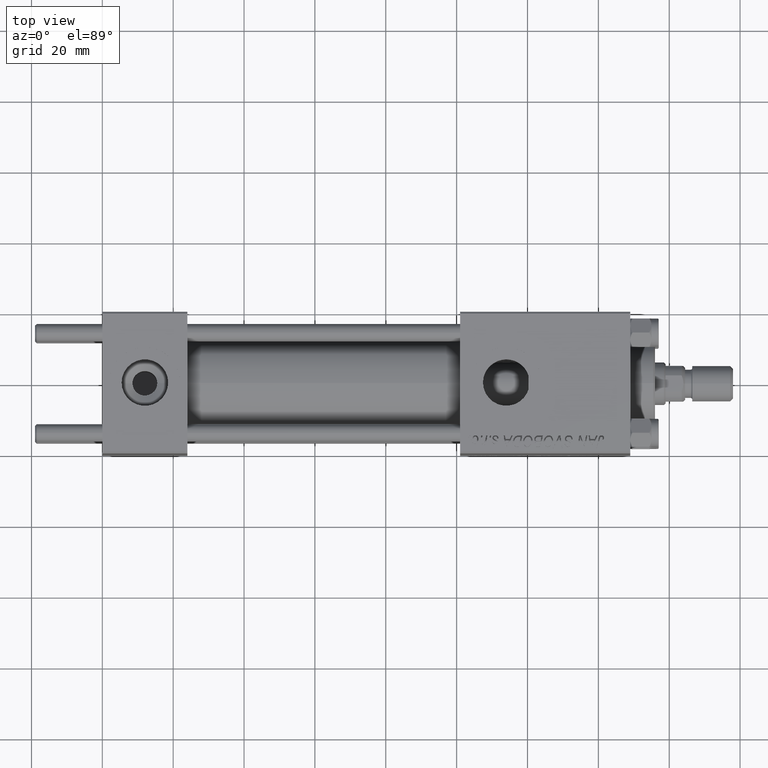
[diagram: clean part render]
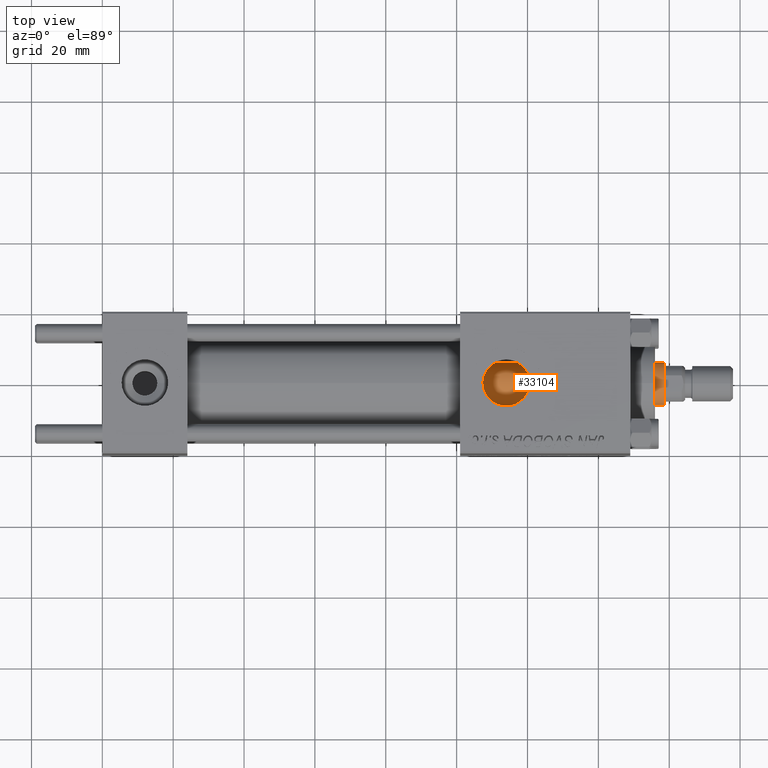
[diagram: same view with one face highlighted and labeled with its STEP entity id]
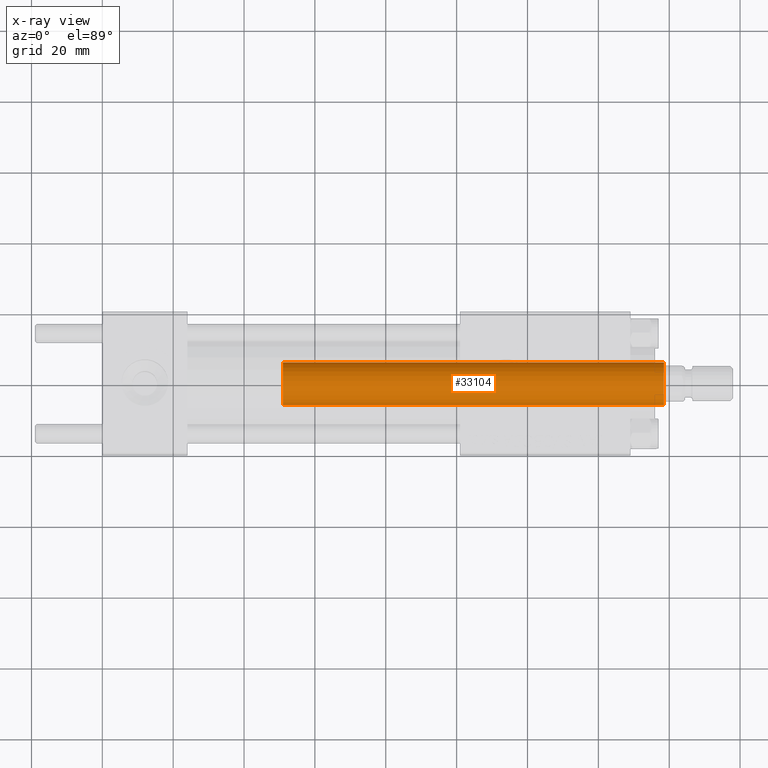
[diagram: x-ray of the same camera — body ghosted, the highlighted face saturated]
A machine part, top view. The second image highlights one B-rep face of the part: STEP entity #33104.
The next image is the same camera in x-ray: the body ghosted, the highlighted face saturated — about 0% of this face is hidden behind the body in this view.
In plain terms, the highlighted cylindrical surface (edge-blend (fillet) strip) has radius 6 mm, axis along (-1, 0, 0).
Its self-contained STEP definition (entity closure, byte-faithful):
#3341 = EDGE_LOOP ( 'NONE', ( #28612, #12638, #20430, #22472 ) ) ;
#3820 = CARTESIAN_POINT ( 'NONE',  ( 6.000000000000000888, 7.347880794884120722E-16, 27.00000000000000000 ) ) ;
#6204 = VECTOR ( 'NONE', #8460, 1000.000000000000000 ) ;
#8460 = DIRECTION ( 'NONE',  ( -0.000000000000000000, -0.000000000000000000, -1.000000000000000000 ) ) ;
#9311 = VERTEX_POINT ( 'NONE', #3820 ) ;
#11397 = CARTESIAN_POINT ( 'NONE',  ( 6.000000000000000888, 7.347880794884120722E-16, 135.0000000000000000 ) ) ;
#12638 = ORIENTED_EDGE ( 'NONE', *, *, #47725, .T. ) ;
#16141 = CARTESIAN_POINT ( 'NONE',  ( 0.000000000000000000, 0.000000000000000000, 27.00000000000000000 ) ) ;
#16394 = LINE ( 'NONE', #11397, #6204 ) ;
#17490 = EDGE_CURVE ( 'NONE', #51543, #44346, #35953, .T. ) ;
#18433 = EDGE_CURVE ( 'NONE', #48184, #9311, #16394, .T. ) ;
#20430 = ORIENTED_EDGE ( 'NONE', *, *, #17490, .T. ) ;
#22472 = ORIENTED_EDGE ( 'NONE', *, *, #26129, .T. ) ;
#24237 = CARTESIAN_POINT ( 'NONE',  ( 0.000000000000000000, 0.000000000000000000, 135.0000000000000000 ) ) ;
#24320 = DIRECTION ( 'NONE',  ( 0.000000000000000000, 0.000000000000000000, 1.000000000000000000 ) ) ;
#24842 = CIRCLE ( 'NONE', #37541, 6.000000000000000888 ) ;
#25761 = AXIS2_PLACEMENT_3D ( 'NONE', #16141, #24320, #40466 ) ;
#26020 = DIRECTION ( 'NONE',  ( 0.000000000000000000, 0.000000000000000000, -1.000000000000000000 ) ) ;
#26129 = EDGE_CURVE ( 'NONE', #44346, #9311, #32517, .T. ) ;
#27930 = DIRECTION ( 'NONE',  ( -1.000000000000000000, 0.000000000000000000, 0.000000000000000000 ) ) ;
#28612 = ORIENTED_EDGE ( 'NONE', *, *, #18433, .F. ) ;
#29464 = CARTESIAN_POINT ( 'NONE',  ( 0.000000000000000000, 0.000000000000000000, 134.4999999999999716 ) ) ;
#31280 = CARTESIAN_POINT ( 'NONE',  ( -6.000000000000000888, 0.000000000000000000, 134.4999999999999716 ) ) ;
#32171 = CYLINDRICAL_SURFACE ( 'NONE', #50692, 6.000000000000000888 ) ;
#32517 = CIRCLE ( 'NONE', #25761, 6.000000000000000888 ) ;
#33104 = ADVANCED_FACE ( 'NONE', ( #52274 ), #32171, .T. ) ;
#35933 = CARTESIAN_POINT ( 'NONE',  ( -6.000000000000000888, 0.000000000000000000, 27.00000000000000000 ) ) ;
#35953 = LINE ( 'NONE', #40445, #38243 ) ;
#36139 = DIRECTION ( 'NONE',  ( -0.000000000000000000, -0.000000000000000000, -1.000000000000000000 ) ) ;
#37541 = AXIS2_PLACEMENT_3D ( 'NONE', #29464, #26020, #38207 ) ;
#38207 = DIRECTION ( 'NONE',  ( 1.000000000000000000, 0.000000000000000000, 0.000000000000000000 ) ) ;
#38243 = VECTOR ( 'NONE', #51577, 1000.000000000000000 ) ;
#40445 = CARTESIAN_POINT ( 'NONE',  ( -6.000000000000000888, 0.000000000000000000, 135.0000000000000000 ) ) ;
#40466 = DIRECTION ( 'NONE',  ( 1.000000000000000000, 0.000000000000000000, 0.000000000000000000 ) ) ;
#40676 = CARTESIAN_POINT ( 'NONE',  ( 6.000000000000000888, 7.347880794884120722E-16, 134.4999999999999716 ) ) ;
#44346 = VERTEX_POINT ( 'NONE', #35933 ) ;
#47725 = EDGE_CURVE ( 'NONE', #48184, #51543, #24842, .T. ) ;
#48184 = VERTEX_POINT ( 'NONE', #40676 ) ;
#50692 = AXIS2_PLACEMENT_3D ( 'NONE', #24237, #36139, #27930 ) ;
#51543 = VERTEX_POINT ( 'NONE', #31280 ) ;
#51577 = DIRECTION ( 'NONE',  ( -0.000000000000000000, -0.000000000000000000, -1.000000000000000000 ) ) ;
#52274 = FACE_OUTER_BOUND ( 'NONE', #3341, .T. ) ;